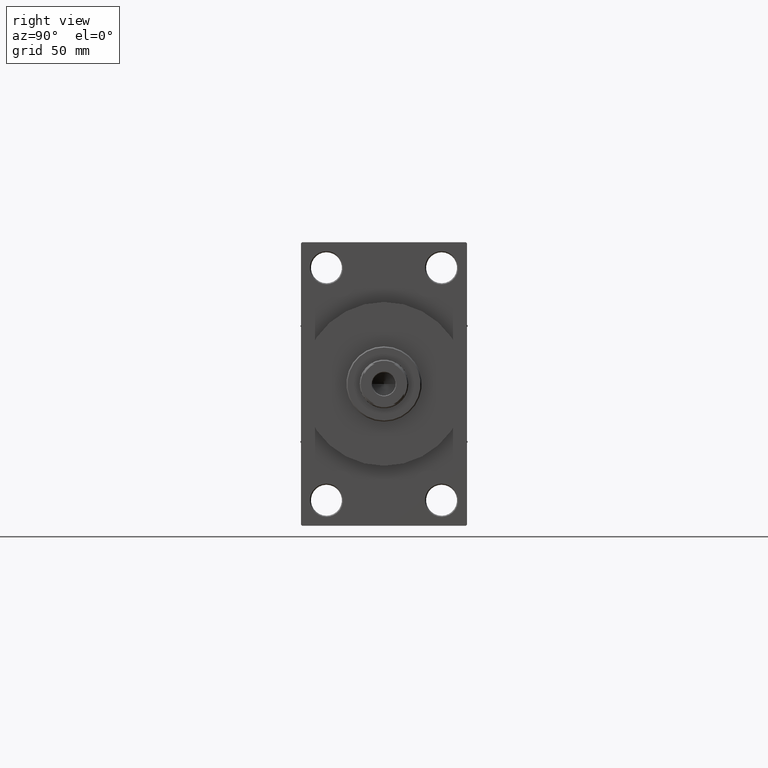
[diagram: clean part render]
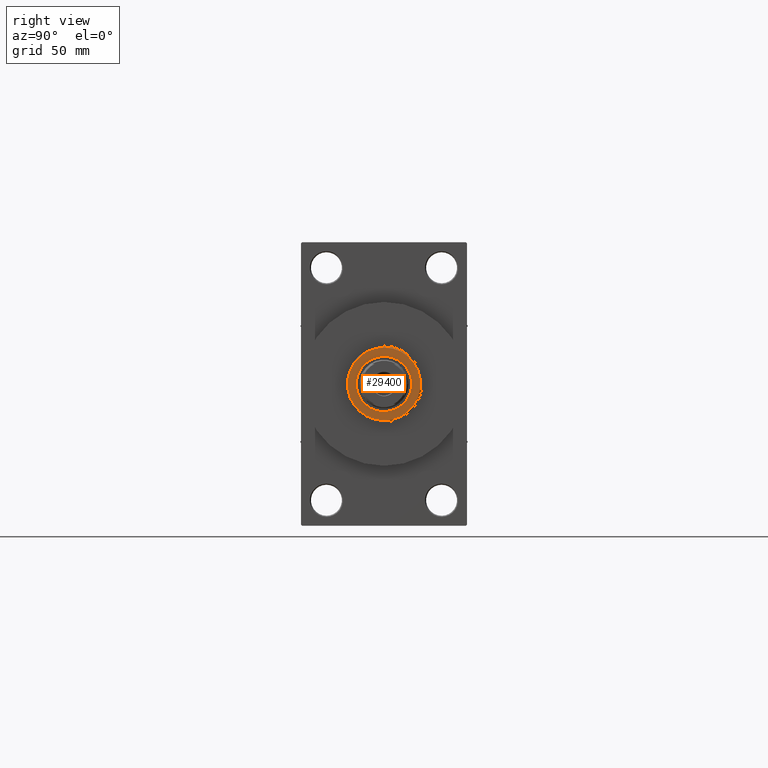
[diagram: same view with one face highlighted and labeled with its STEP entity id]
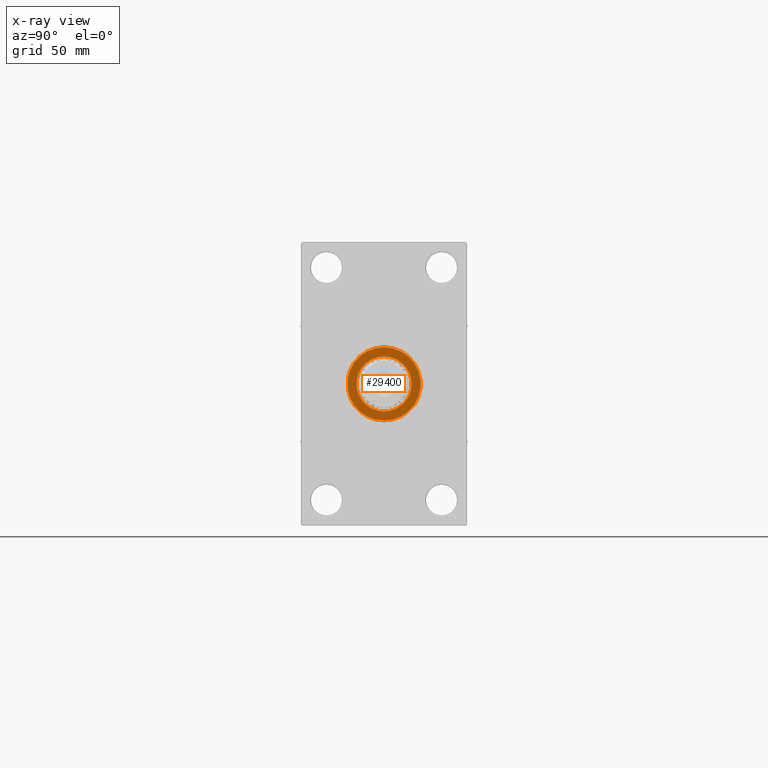
[diagram: x-ray of the same camera — body ghosted, the highlighted face saturated]
A machine part, right view. The second image highlights one B-rep face of the part: STEP entity #29400.
The next image is the same camera in x-ray: the body ghosted, the highlighted face saturated — about 0% of this face is hidden behind the body in this view.
In plain terms, the highlighted planar face has unit normal (1, -0, -0).
Its self-contained STEP definition (entity closure, byte-faithful):
#425 = DIRECTION ( 'NONE',  ( 0.000000000000000000, 0.000000000000000000, 1.000000000000000000 ) ) ;
#2321 = VERTEX_POINT ( 'NONE', #20842 ) ;
#2331 = EDGE_LOOP ( 'NONE', ( #16970, #36319 ) ) ;
#3862 = DIRECTION ( 'NONE',  ( 0.000000000000000000, 0.000000000000000000, 1.000000000000000000 ) ) ;
#4875 = CARTESIAN_POINT ( 'NONE',  ( 0.000000000000000000, 0.000000000000000000, 52.25999999999999801 ) ) ;
#6820 = AXIS2_PLACEMENT_3D ( 'NONE', #44401, #7143, #7854 ) ;
#7143 = DIRECTION ( 'NONE',  ( 0.000000000000000000, 0.000000000000000000, 1.000000000000000000 ) ) ;
#7670 = AXIS2_PLACEMENT_3D ( 'NONE', #33116, #25926, #26405 ) ;
#7854 = DIRECTION ( 'NONE',  ( 1.000000000000000000, 0.000000000000000000, -0.000000000000000000 ) ) ;
#8092 = AXIS2_PLACEMENT_3D ( 'NONE', #43632, #425, #18312 ) ;
#9677 = EDGE_CURVE ( 'NONE', #34212, #18821, #29277, .T. ) ;
#11211 = FACE_OUTER_BOUND ( 'NONE', #2331, .T. ) ;
#13408 = AXIS2_PLACEMENT_3D ( 'NONE', #43041, #3862, #21062 ) ;
#14146 = CARTESIAN_POINT ( 'NONE',  ( 12.50000000000000000, 0.000000000000000000, 52.25999999999999801 ) ) ;
#14791 = PLANE ( 'NONE',  #6820 ) ;
#15024 = FACE_BOUND ( 'NONE', #45382, .T. ) ;
#16102 = CARTESIAN_POINT ( 'NONE',  ( 16.50000000000000000, 2.051283388571816887E-15, 52.25999999999999801 ) ) ;
#16970 = ORIENTED_EDGE ( 'NONE', *, *, #18226, .T. ) ;
#18226 = EDGE_CURVE ( 'NONE', #2321, #34405, #44677, .T. ) ;
#18312 = DIRECTION ( 'NONE',  ( 1.000000000000000000, 0.000000000000000000, 0.000000000000000000 ) ) ;
#18352 = CIRCLE ( 'NONE', #7670, 12.50000000000000000 ) ;
#18821 = VERTEX_POINT ( 'NONE', #14146 ) ;
#18835 = EDGE_CURVE ( 'NONE', #34405, #2321, #24852, .T. ) ;
#20842 = CARTESIAN_POINT ( 'NONE',  ( -16.50000000000000000, 0.000000000000000000, 52.25999999999999801 ) ) ;
#21062 = DIRECTION ( 'NONE',  ( 1.000000000000000000, 0.000000000000000000, 0.000000000000000000 ) ) ;
#24852 = CIRCLE ( 'NONE', #13408, 16.50000000000000000 ) ;
#25926 = DIRECTION ( 'NONE',  ( 0.000000000000000000, 0.000000000000000000, 1.000000000000000000 ) ) ;
#26405 = DIRECTION ( 'NONE',  ( 1.000000000000000000, 0.000000000000000000, 0.000000000000000000 ) ) ;
#26675 = CARTESIAN_POINT ( 'NONE',  ( -12.50000000000000000, 1.530808498934191521E-15, 52.25999999999999801 ) ) ;
#27545 = DIRECTION ( 'NONE',  ( 1.000000000000000000, 0.000000000000000000, 0.000000000000000000 ) ) ;
#27730 = AXIS2_PLACEMENT_3D ( 'NONE', #4875, #30203, #27545 ) ;
#29243 = ORIENTED_EDGE ( 'NONE', *, *, #35294, .F. ) ;
#29277 = CIRCLE ( 'NONE', #27730, 12.50000000000000000 ) ;
#29400 = ADVANCED_FACE ( 'NONE', ( #15024, #11211 ), #14791, .T. ) ;
#30203 = DIRECTION ( 'NONE',  ( 0.000000000000000000, 0.000000000000000000, 1.000000000000000000 ) ) ;
#32034 = ORIENTED_EDGE ( 'NONE', *, *, #9677, .F. ) ;
#33116 = CARTESIAN_POINT ( 'NONE',  ( 0.000000000000000000, 0.000000000000000000, 52.25999999999999801 ) ) ;
#34212 = VERTEX_POINT ( 'NONE', #26675 ) ;
#34405 = VERTEX_POINT ( 'NONE', #16102 ) ;
#35294 = EDGE_CURVE ( 'NONE', #18821, #34212, #18352, .T. ) ;
#36319 = ORIENTED_EDGE ( 'NONE', *, *, #18835, .T. ) ;
#43041 = CARTESIAN_POINT ( 'NONE',  ( 0.000000000000000000, 0.000000000000000000, 52.25999999999999801 ) ) ;
#43632 = CARTESIAN_POINT ( 'NONE',  ( 0.000000000000000000, 0.000000000000000000, 52.25999999999999801 ) ) ;
#44401 = CARTESIAN_POINT ( 'NONE',  ( 0.000000000000000000, 0.000000000000000000, 52.25999999999999801 ) ) ;
#44677 = CIRCLE ( 'NONE', #8092, 16.50000000000000000 ) ;
#45382 = EDGE_LOOP ( 'NONE', ( #29243, #32034 ) ) ;